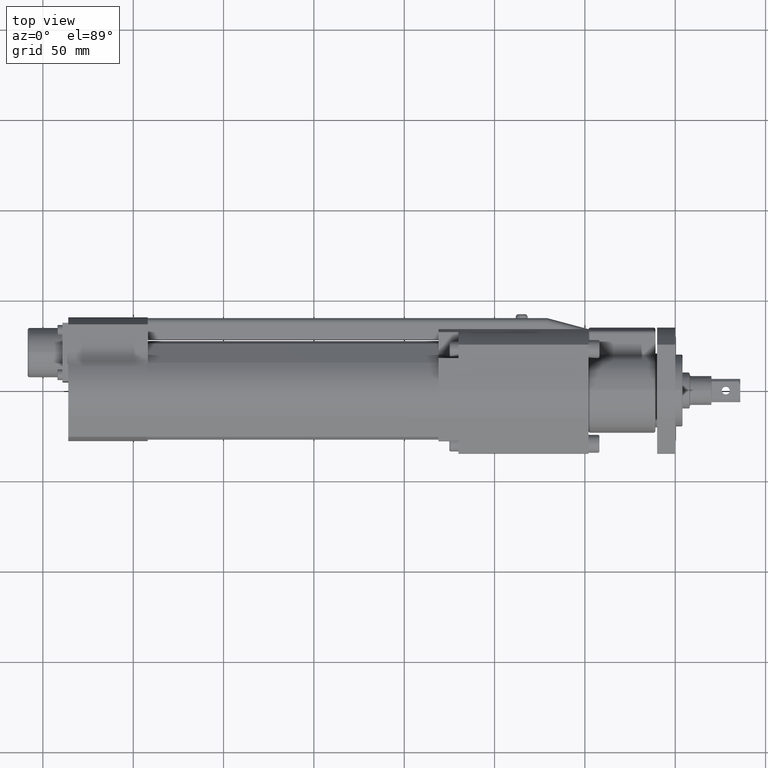
[diagram: clean part render]
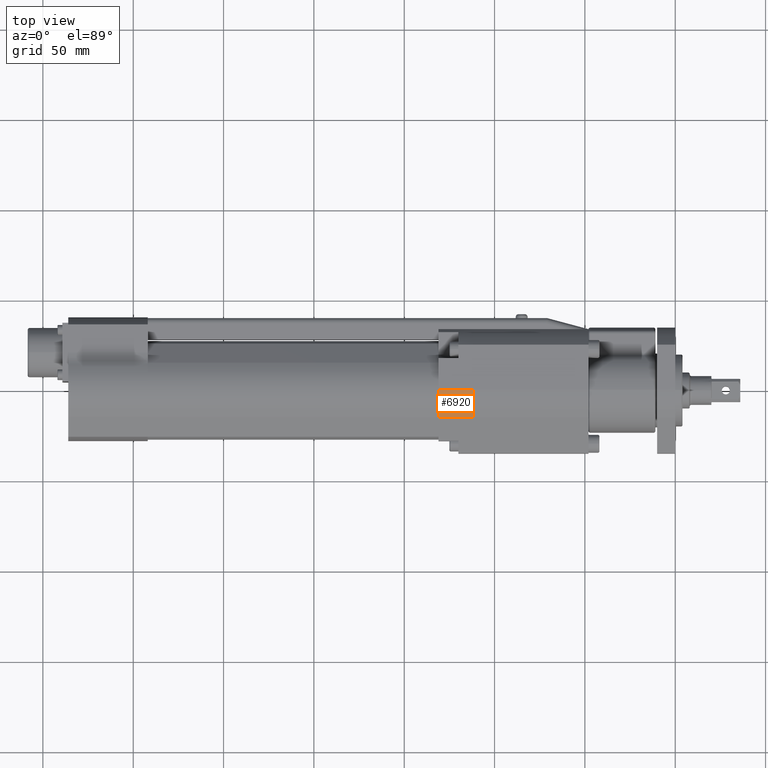
[diagram: same view with one face highlighted and labeled with its STEP entity id]
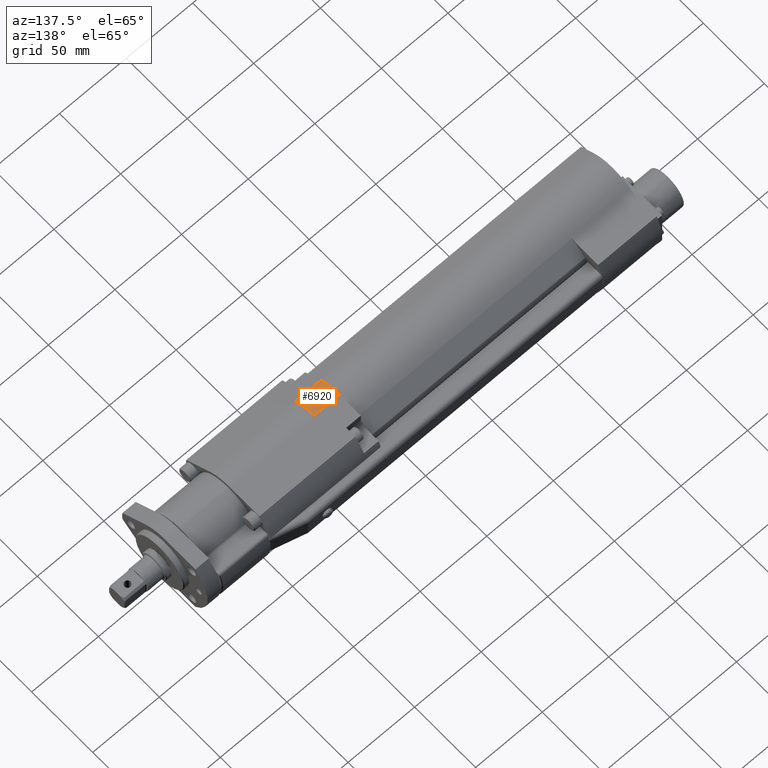
[diagram: same view with one face highlighted and labeled with its STEP entity id]
A machine part, top view. The second image highlights one B-rep face of the part: STEP entity #6920.
A second angle (auxiliary view) of the same face is appended — the face is thin or edge-on in the first view.
In plain terms, the highlighted cylindrical surface (partial cylindrical patch) has radius 24.5 mm, axis along (1, -0, -0).
Its self-contained STEP definition (entity closure, byte-faithful):
#5 = ORIENTED_EDGE ( 'NONE', *, *, #3205, .F. ) ;
#613 = VERTEX_POINT ( 'NONE', #6360 ) ;
#706 = CYLINDRICAL_SURFACE ( 'NONE', #5218, 24.50000000000000400 ) ;
#948 = LINE ( 'NONE', #7283, #6438 ) ;
#1472 = CARTESIAN_POINT ( 'NONE',  ( -131.0000000000000000, 0.0000000000000000000, 0.0000000000000000000 ) ) ;
#1551 = DIRECTION ( 'NONE',  ( 1.000000000000000000, -0.0000000000000000000, -0.0000000000000000000 ) ) ;
#1959 = LINE ( 'NONE', #8358, #3847 ) ;
#2192 = DIRECTION ( 'NONE',  ( 0.0000000000000000000, 0.0000000000000000000, 1.000000000000000000 ) ) ;
#2228 = DIRECTION ( 'NONE',  ( 0.0000000000000000000, 0.0000000000000000000, -1.000000000000000000 ) ) ;
#2351 = VERTEX_POINT ( 'NONE', #5797 ) ;
#2472 = CIRCLE ( 'NONE', #6615, 24.50000000000000400 ) ;
#2848 = EDGE_CURVE ( 'NONE', #5250, #613, #1959, .T. ) ;
#2945 = CARTESIAN_POINT ( 'NONE',  ( -131.0000000000000000, 0.0000000000000000000, 0.0000000000000000000 ) ) ;
#3205 = EDGE_CURVE ( 'NONE', #4866, #2351, #948, .T. ) ;
#3386 = DIRECTION ( 'NONE',  ( -1.000000000000000000, 0.0000000000000000000, 0.0000000000000000000 ) ) ;
#3847 = VECTOR ( 'NONE', #4022, 1000.000000000000000 ) ;
#4022 = DIRECTION ( 'NONE',  ( 1.000000000000000000, -0.0000000000000000000, -0.0000000000000000000 ) ) ;
#4395 = CARTESIAN_POINT ( 'NONE',  ( -131.0000000000000000, 0.0000000000000000000, 24.50000000000000000 ) ) ;
#4640 = EDGE_LOOP ( 'NONE', ( #7323, #5, #4683, #8919 ) ) ;
#4683 = ORIENTED_EDGE ( 'NONE', *, *, #7614, .F. ) ;
#4866 = VERTEX_POINT ( 'NONE', #4395 ) ;
#4906 = AXIS2_PLACEMENT_3D ( 'NONE', #7694, #3386, #8421 ) ;
#4943 = FACE_OUTER_BOUND ( 'NONE', #4640, .T. ) ;
#5218 = AXIS2_PLACEMENT_3D ( 'NONE', #2945, #5810, #2228 ) ;
#5250 = VERTEX_POINT ( 'NONE', #6511 ) ;
#5797 = CARTESIAN_POINT ( 'NONE',  ( -112.0000000000000000, 0.0000000000000000000, 24.50000000000000000 ) ) ;
#5810 = DIRECTION ( 'NONE',  ( 1.000000000000000000, -0.0000000000000000000, -0.0000000000000000000 ) ) ;
#6360 = CARTESIAN_POINT ( 'NONE',  ( -112.0000000000000000, -15.08370614547879500, 19.30626346336456600 ) ) ;
#6438 = VECTOR ( 'NONE', #1551, 1000.000000000000000 ) ;
#6483 = DIRECTION ( 'NONE',  ( -1.000000000000000000, 0.0000000000000000000, 0.0000000000000000000 ) ) ;
#6511 = CARTESIAN_POINT ( 'NONE',  ( -131.0000000000000000, -15.08370614547879500, 19.30626346336456600 ) ) ;
#6601 = CIRCLE ( 'NONE', #4906, 24.50000000000000400 ) ;
#6615 = AXIS2_PLACEMENT_3D ( 'NONE', #1472, #6483, #2192 ) ;
#6920 = ADVANCED_FACE ( 'NONE', ( #4943 ), #706, .T. ) ;
#7283 = CARTESIAN_POINT ( 'NONE',  ( -131.0000000000000000, 0.0000000000000000000, 24.50000000000000000 ) ) ;
#7323 = ORIENTED_EDGE ( 'NONE', *, *, #8811, .T. ) ;
#7614 = EDGE_CURVE ( 'NONE', #5250, #4866, #2472, .T. ) ;
#7694 = CARTESIAN_POINT ( 'NONE',  ( -112.0000000000000000, 0.0000000000000000000, 0.0000000000000000000 ) ) ;
#8358 = CARTESIAN_POINT ( 'NONE',  ( -131.0000000000000000, -15.08370614547879500, 19.30626346336456600 ) ) ;
#8421 = DIRECTION ( 'NONE',  ( 0.0000000000000000000, 0.0000000000000000000, 1.000000000000000000 ) ) ;
#8811 = EDGE_CURVE ( 'NONE', #613, #2351, #6601, .T. ) ;
#8919 = ORIENTED_EDGE ( 'NONE', *, *, #2848, .T. ) ;